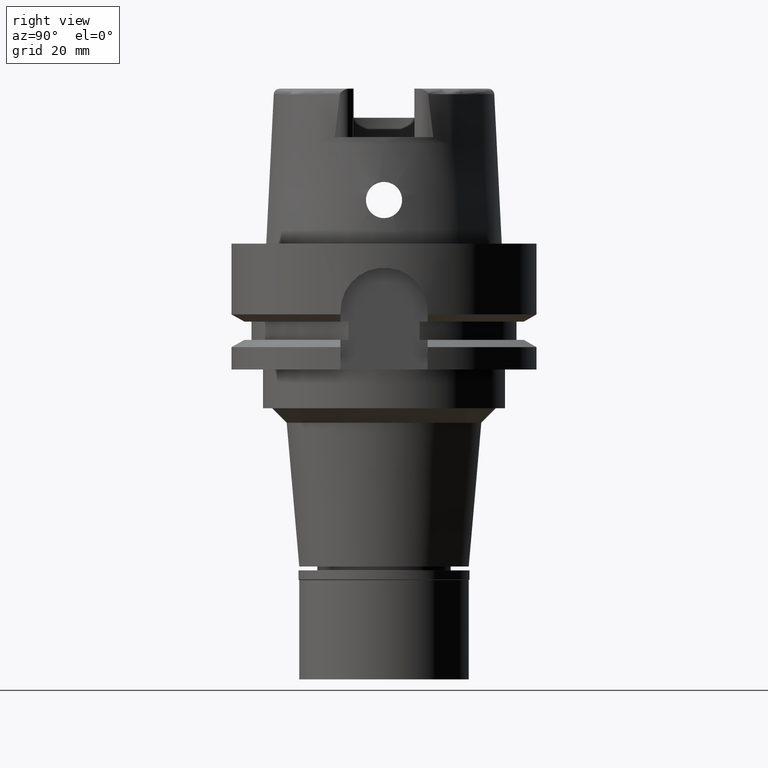
[diagram: clean part render]
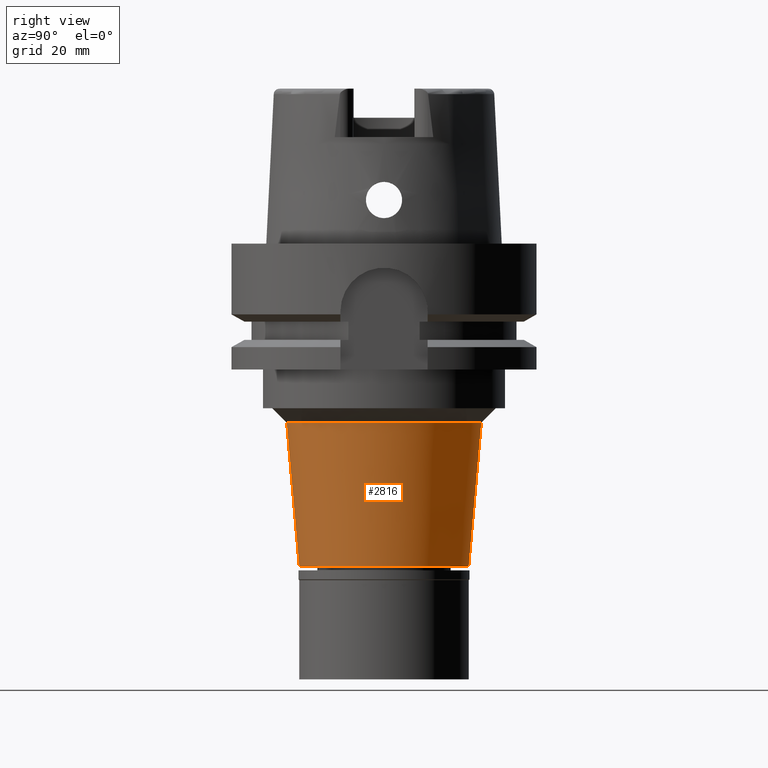
[diagram: same view with one face highlighted and labeled with its STEP entity id]
A machine part, right view. The second image highlights one B-rep face of the part: STEP entity #2816.
In plain terms, the highlighted conical surface has half-angle 5 deg.
Its self-contained STEP definition (entity closure, byte-faithful):
#432 = AXIS2_PLACEMENT_3D ( 'NONE', #3024, #4763, #435 ) ;
#435 = DIRECTION ( 'NONE',  ( 0.0000000000000000000, 1.000000000000000000, 0.0000000000000000000 ) ) ;
#505 = ORIENTED_EDGE ( 'NONE', *, *, #3736, .F. ) ;
#540 = VERTEX_POINT ( 'NONE', #4066 ) ;
#790 = ORIENTED_EDGE ( 'NONE', *, *, #2163, .F. ) ;
#853 = CARTESIAN_POINT ( 'NONE',  ( 0.0000000000000000000, 17.50000000000000000, -66.69999999999998863 ) ) ;
#1316 = AXIS2_PLACEMENT_3D ( 'NONE', #1695, #3814, #4316 ) ;
#1344 = FACE_OUTER_BOUND ( 'NONE', #5615, .T. ) ;
#1665 = DIRECTION ( 'NONE',  ( 0.0000000000000000000, 0.0000000000000000000, 1.000000000000000000 ) ) ;
#1695 = CARTESIAN_POINT ( 'NONE',  ( 0.0000000000000000000, 0.0000000000000000000, -66.69999999999998863 ) ) ;
#1848 = ORIENTED_EDGE ( 'NONE', *, *, #3730, .T. ) ;
#1877 = EDGE_CURVE ( 'NONE', #540, #1987, #1886, .T. ) ;
#1886 = LINE ( 'NONE', #4943, #2684 ) ;
#1961 = CIRCLE ( 'NONE', #5328, 20.09841330671999771 ) ;
#1977 = CARTESIAN_POINT ( 'NONE',  ( 0.0000000000000000000, -17.50000000000000000, -66.69999999999998863 ) ) ;
#1987 = VERTEX_POINT ( 'NONE', #1977 ) ;
#2054 = VERTEX_POINT ( 'NONE', #853 ) ;
#2156 = CARTESIAN_POINT ( 'NONE',  ( 0.0000000000000000000, 0.0000000000000000000, -37.00000000000000000 ) ) ;
#2163 = EDGE_CURVE ( 'NONE', #3920, #2054, #5295, .T. ) ;
#2671 = CIRCLE ( 'NONE', #1316, 17.50000000000000000 ) ;
#2684 = VECTOR ( 'NONE', #3230, 1000.000000000000114 ) ;
#2816 = ADVANCED_FACE ( 'NONE', ( #1344 ), #4899, .T. ) ;
#3024 = CARTESIAN_POINT ( 'NONE',  ( 0.0000000000000000000, 0.0000000000000000000, -51.85000000000000142 ) ) ;
#3134 = CARTESIAN_POINT ( 'NONE',  ( 0.0000000000000000000, 20.09841330671999771, -37.00000000000000000 ) ) ;
#3230 = DIRECTION ( 'NONE',  ( 0.0000000000000000000, 0.08715574274766389740, -0.9961946980917451011 ) ) ;
#3730 = EDGE_CURVE ( 'NONE', #1987, #2054, #2671, .T. ) ;
#3736 = EDGE_CURVE ( 'NONE', #540, #3920, #1961, .T. ) ;
#3814 = DIRECTION ( 'NONE',  ( 0.0000000000000000000, 0.0000000000000000000, 1.000000000000000000 ) ) ;
#3920 = VERTEX_POINT ( 'NONE', #4334 ) ;
#4066 = CARTESIAN_POINT ( 'NONE',  ( 0.0000000000000000000, -20.09841330671999771, -37.00000000000000000 ) ) ;
#4210 = ORIENTED_EDGE ( 'NONE', *, *, #1877, .T. ) ;
#4316 = DIRECTION ( 'NONE',  ( 0.0000000000000000000, -1.000000000000000000, 0.0000000000000000000 ) ) ;
#4334 = CARTESIAN_POINT ( 'NONE',  ( 0.0000000000000000000, 20.09841330671999771, -37.00000000000000000 ) ) ;
#4349 = DIRECTION ( 'NONE',  ( 0.0000000000000000000, -1.000000000000000000, 0.0000000000000000000 ) ) ;
#4443 = DIRECTION ( 'NONE',  ( 0.0000000000000000000, -0.08715574274766389740, -0.9961946980917451011 ) ) ;
#4763 = DIRECTION ( 'NONE',  ( 0.0000000000000000000, 0.0000000000000000000, 1.000000000000000000 ) ) ;
#4899 = CONICAL_SURFACE ( 'NONE', #432, 18.79920665335999885, 0.08726646259969973729 ) ;
#4943 = CARTESIAN_POINT ( 'NONE',  ( 0.0000000000000000000, -20.09841330671999771, -37.00000000000000000 ) ) ;
#5250 = VECTOR ( 'NONE', #4443, 1000.000000000000114 ) ;
#5295 = LINE ( 'NONE', #3134, #5250 ) ;
#5328 = AXIS2_PLACEMENT_3D ( 'NONE', #2156, #1665, #4349 ) ;
#5615 = EDGE_LOOP ( 'NONE', ( #505, #4210, #1848, #790 ) ) ;